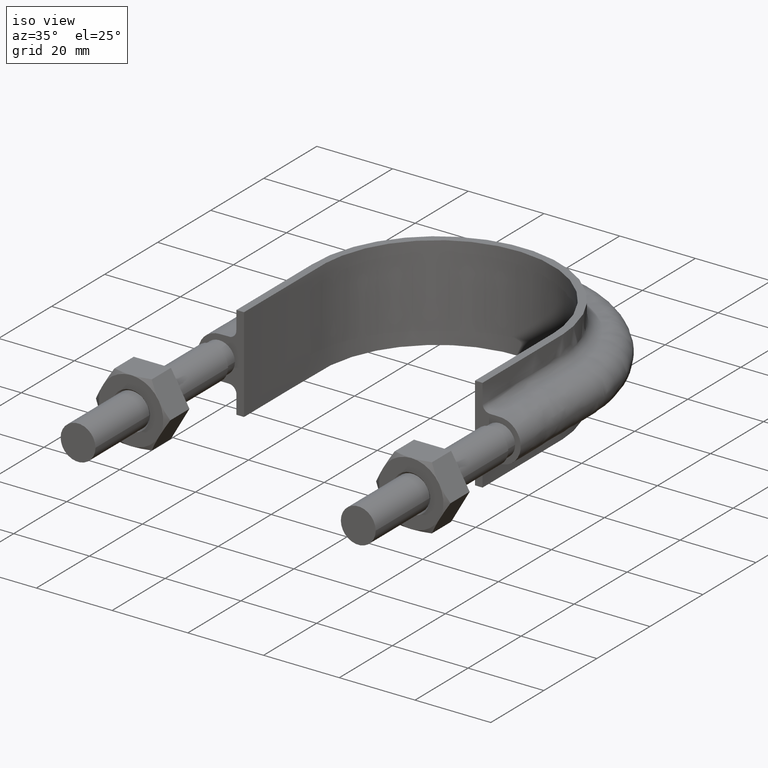
[diagram: clean part render]
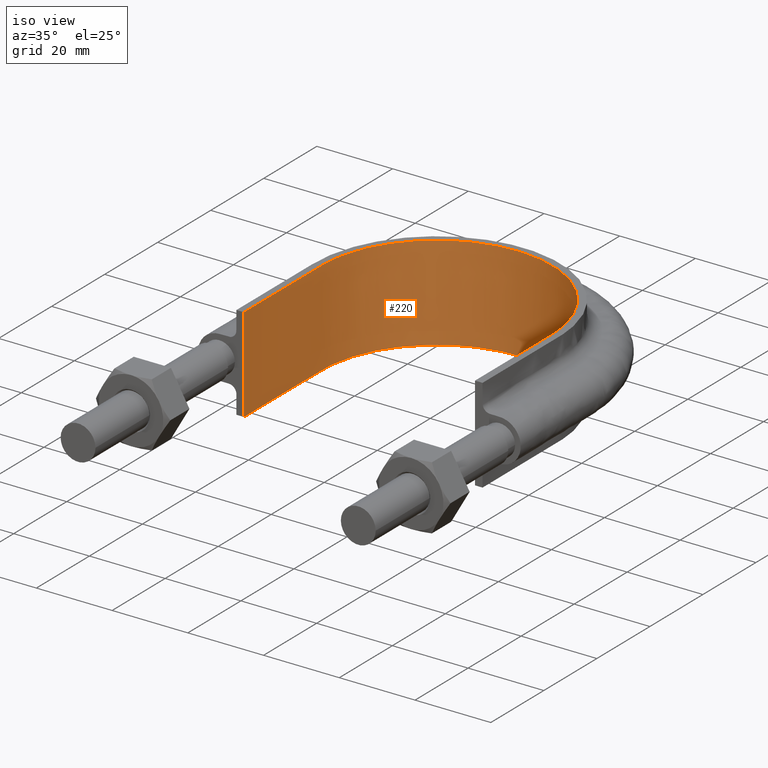
[diagram: same view with one face highlighted and labeled with its STEP entity id]
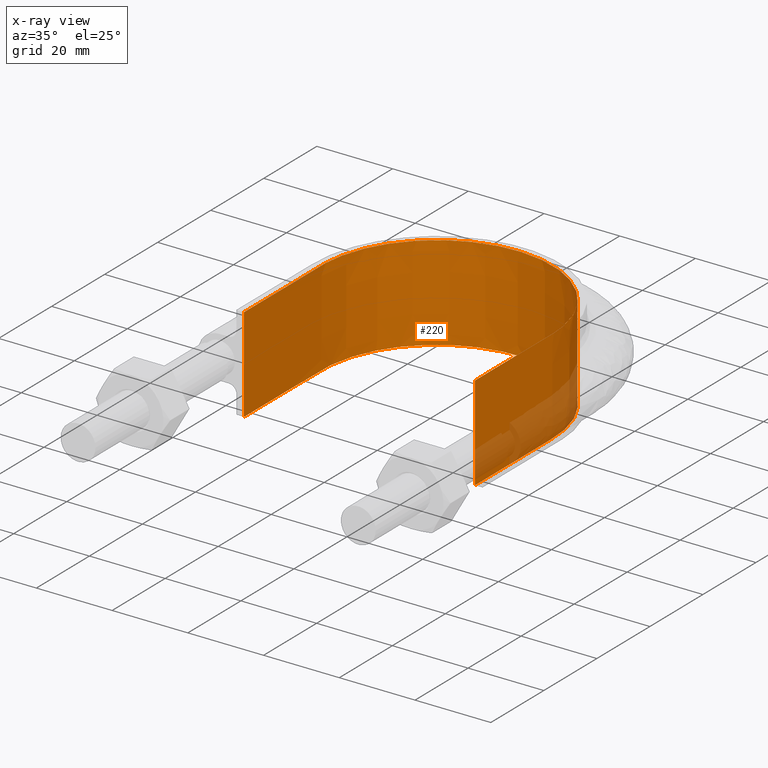
[diagram: x-ray of the same camera — body ghosted, the highlighted face saturated]
A machine part, iso view. The second image highlights one B-rep face of the part: STEP entity #220.
The next image is the same camera in x-ray: the body ghosted, the highlighted face saturated — about 9% of this face is hidden behind the body in this view.
In plain terms, the highlighted face is a SurfaceOfExtrusion surface.
Its self-contained STEP definition (entity closure, byte-faithful):
#220 = ADVANCED_FACE( '', ( #299 ), #300, .T. );
#299 = FACE_OUTER_BOUND( '', #471, .T. );
#300 = SURFACE_OF_LINEAR_EXTRUSION( '', #472, #473 );
#471 = EDGE_LOOP( '', ( #1473, #1474, #1475, #1476 ) );
#472 = B_SPLINE_CURVE_WITH_KNOTS( '', 3, ( #1477, #1478, #1479, #1480, #1481, #1482, #1483, #1484, #1485, #1486, #1487, #1488, #1489, #1490, #1491, #1492, #1493 ), .UNSPECIFIED., .F., .F., ( 4, 3, 1, 1, 1, 1, 1, 1, 1, 3, 4 ), ( -7.88217522658610, -7.00000000000000, -6.50000000000000, -6.00000000000000, -5.00000000000000, -4.00000000000000, -3.00000000000000, -2.00000000000000, -1.50000000000000, -1.00000000000000, -0.117824773413899 ), .UNSPECIFIED. );
#473 = VECTOR( '', #1494, 1000.00000000000 );
#1473 = ORIENTED_EDGE( '', *, *, #2008, .T. );
#1474 = ORIENTED_EDGE( '', *, *, #2004, .F. );
#1475 = ORIENTED_EDGE( '', *, *, #2009, .F. );
#1476 = ORIENTED_EDGE( '', *, *, #2010, .T. );
#1477 = CARTESIAN_POINT( '', ( 30.5000000000000, 53.3000000000001, 12.5000100000910 ) );
#1478 = CARTESIAN_POINT( '', ( 30.5000000000000, 63.0333333333334, 12.5000100000910 ) );
#1479 = CARTESIAN_POINT( '', ( 30.5000000000000, 72.7666666666667, 12.5000100000910 ) );
#1480 = CARTESIAN_POINT( '', ( 30.5000000000000, 82.5000000000000, 12.5000100000910 ) );
#1481 = CARTESIAN_POINT( '', ( 30.5000000000000, 85.1469095748589, 12.5000100000910 ) );
#1482 = CARTESIAN_POINT( '', ( 29.7847488998591, 90.4869374410593, 12.5000100000910 ) );
#1483 = CARTESIAN_POINT( '', ( 25.7022707691493, 100.407294151929, 12.5000100000910 ) );
#1484 = CARTESIAN_POINT( '', ( 15.9624408097424, 110.149665427345, 12.5000100000910 ) );
#1485 = CARTESIAN_POINT( '', ( 2.44209195454634E-014, 114.425167286328, 12.5000100000910 ) );
#1486 = CARTESIAN_POINT( '', ( -15.9624408097423, 110.149665427345, 12.5000100000910 ) );
#1487 = CARTESIAN_POINT( '', ( -25.7022707691492, 100.407294151929, 12.5000100000910 ) );
#1488 = CARTESIAN_POINT( '', ( -29.7847488998590, 90.4869374410593, 12.5000100000910 ) );
#1489 = CARTESIAN_POINT( '', ( -30.5000000000000, 85.1469095748589, 12.5000100000910 ) );
#1490 = CARTESIAN_POINT( '', ( -30.5000000000000, 82.5000000000000, 12.5000100000910 ) );
#1491 = CARTESIAN_POINT( '', ( -30.5000000000000, 72.7666666666667, 12.5000100000910 ) );
#1492 = CARTESIAN_POINT( '', ( -30.5000000000000, 63.0333333333334, 12.5000100000910 ) );
#1493 = CARTESIAN_POINT( '', ( -30.5000000000000, 53.3000000000001, 12.5000100000910 ) );
#1494 = DIRECTION( '', ( 0.000000000000000, 0.000000000000000, -1.00000000000000 ) );
#2004 = EDGE_CURVE( '', #2155, #2158, #2159, .T. );
#2008 = EDGE_CURVE( '', #2165, #2158, #2166, .F. );
#2009 = EDGE_CURVE( '', #2167, #2155, #2168, .T. );
#2010 = EDGE_CURVE( '', #2167, #2165, #2169, .T. );
#2155 = VERTEX_POINT( '', #2405 );
#2158 = VERTEX_POINT( '', #2409 );
#2159 = LINE( '', #2410, #2411 );
#2165 = VERTEX_POINT( '', #2457 );
#2166 = B_SPLINE_CURVE_WITH_KNOTS( '', 3, ( #2458, #2459, #2460, #2461, #2462, #2463, #2464, #2465, #2466, #2467, #2468, #2469, #2470, #2471, #2472, #2473, #2474 ), .UNSPECIFIED., .F., .F., ( 4, 3, 1, 1, 1, 1, 1, 1, 1, 3, 4 ), ( -7.88217522658610, -7.00000000000000, -6.50000000000000, -6.00000000000000, -5.00000000000000, -4.00000000000000, -3.00000000000000, -2.00000000000000, -1.50000000000000, -1.00000000000000, -0.117824773413899 ), .UNSPECIFIED. );
#2167 = VERTEX_POINT( '', #2475 );
#2168 = B_SPLINE_CURVE_WITH_KNOTS( '', 3, ( #2476, #2477, #2478, #2479, #2480, #2481, #2482, #2483, #2484, #2485, #2486, #2487, #2488, #2489, #2490, #2491, #2492, #2493, #2494, #2495, #2496, #2497, #2498, #2499, #2500, #2501, #2502, #2503, #2504, #2505, #2506, #2507, #2508, #2509, #2510, #2511, #2512, #2513, #2514, #2515, #2516, #2517, #2518, #2519, #2520, #2521, #2522, #2523, #2524, #2525, #2526, #2527, #2528, #2529, #2530, #2531, #2532, #2533, #2534, #2535, #2536, #2537, #2538, #2539, #2540, #2541, #2542, #2543, #2544, #2545, #2546, #2547, #2548, #2549 ), .UNSPECIFIED., .F., .F., ( 4, 1, 2, 2, 2, 2, 2, 2, 2, 2, 2, 2, 2, 2, 2, 2, 2, 2, 2, 2, 2, 2, 2, 2, 2, 2, 2, 2, 2, 2, 2, 2, 2, 2, 2, 2, 1, 4 ), ( 0.000000000000000, 0.0192554222640501, 0.0288831333960752, 0.0300865972875783, 0.0312900611790814, 0.0336969889620877, 0.0385108445281003, 0.0433247000941129, 0.0445281639856160, 0.0457316278771192, 0.0481385556601255, 0.0529524112261380, 0.0553593390091443, 0.0577662667921505, 0.0625801223581630, 0.0649870501411693, 0.0673939779241756, 0.0722078334901881, 0.0746147612731943, 0.0770216890562006, 0.0818355446222131, 0.0842424724052194, 0.0866494001882257, 0.0914632557542382, 0.0938701835372444, 0.0962771113202507, 0.101090966886263, 0.103497894669269, 0.105904822452276, 0.110718678018288, 0.115532533584301, 0.117939461367307, 0.120346389150313, 0.122753316933320, 0.123956780824823, 0.125160244716326, 0.134787955848351, 0.154043378112401 ), .UNSPECIFIED. );
#2169 = LINE( '', #2550, #2551 );
#2405 = CARTESIAN_POINT( '', ( 30.5000000000000, 53.3000000000001, 12.5000000000000 ) );
#2409 = CARTESIAN_POINT( '', ( 30.5000000000000, 53.3000000000001, -12.5000000000000 ) );
#2410 = CARTESIAN_POINT( '', ( 30.5000000000000, 53.3000000000001, 12.5000100000910 ) );
#2411 = VECTOR( '', #3059, 1000.00000000000 );
#2457 = CARTESIAN_POINT( '', ( -30.5000000000000, 53.3000000000001, -12.5000000000000 ) );
#2458 = CARTESIAN_POINT( '', ( 30.5000000000000, 53.3000000000001, -12.5000000000000 ) );
#2459 = CARTESIAN_POINT( '', ( 30.5000000000000, 63.0333333333334, -12.5000000000000 ) );
#2460 = CARTESIAN_POINT( '', ( 30.5000000000000, 72.7666666666667, -12.5000000000000 ) );
#2461 = CARTESIAN_POINT( '', ( 30.5000000000000, 82.5000000000000, -12.5000000000000 ) );
#2462 = CARTESIAN_POINT( '', ( 30.5000000000000, 85.1469095748589, -12.5000000000000 ) );
#2463 = CARTESIAN_POINT( '', ( 29.7847488998591, 90.4869374410593, -12.5000000000000 ) );
#2464 = CARTESIAN_POINT( '', ( 25.7022707691493, 100.407294151929, -12.5000000000000 ) );
#2465 = CARTESIAN_POINT( '', ( 15.9624408097424, 110.149665427345, -12.5000000000000 ) );
#2466 = CARTESIAN_POINT( '', ( 2.44209195454634E-014, 114.425167286328, -12.5000000000000 ) );
#2467 = CARTESIAN_POINT( '', ( -15.9624408097423, 110.149665427345, -12.5000000000000 ) );
#2468 = CARTESIAN_POINT( '', ( -25.7022707691492, 100.407294151929, -12.5000000000000 ) );
#2469 = CARTESIAN_POINT( '', ( -29.7847488998590, 90.4869374410593, -12.5000000000000 ) );
#2470 = CARTESIAN_POINT( '', ( -30.5000000000000, 85.1469095748589, -12.5000000000000 ) );
#2471 = CARTESIAN_POINT( '', ( -30.5000000000000, 82.5000000000000, -12.5000000000000 ) );
#2472 = CARTESIAN_POINT( '', ( -30.5000000000000, 72.7666666666667, -12.5000000000000 ) );
#2473 = CARTESIAN_POINT( '', ( -30.5000000000000, 63.0333333333334, -12.5000000000000 ) );
#2474 = CARTESIAN_POINT( '', ( -30.5000000000000, 53.3000000000001, -12.5000000000000 ) );
#2475 = CARTESIAN_POINT( '', ( -30.5000000000000, 53.3000000000001, 12.5000000000000 ) );
#2476 = CARTESIAN_POINT( '', ( -30.5000000000000, 53.3000000000001, 12.5000000000000 ) );
#2477 = CARTESIAN_POINT( '', ( -30.5000000000000, 59.7187970838913, 12.5000000000000 ) );
#2478 = CARTESIAN_POINT( '', ( -30.5000000000000, 69.3469927097281, 12.5000000000000 ) );
#2479 = CARTESIAN_POINT( '', ( -30.5000000000000, 78.9751883355649, 12.5000000000000 ) );
#2480 = CARTESIAN_POINT( '', ( -30.5000000000000, 82.5857616952537, 12.5000000000000 ) );
#2481 = CARTESIAN_POINT( '', ( -30.4986844541323, 82.9869233149688, 12.5000000000000 ) );
#2482 = CARTESIAN_POINT( '', ( -30.4745981741132, 83.7890313082535, 12.5000000000000 ) );
#2483 = CARTESIAN_POINT( '', ( -30.4544492509140, 84.1900039847712, 12.5000000000000 ) );
#2484 = CARTESIAN_POINT( '', ( -30.3699321862256, 85.3926805324889, 12.5000000000000 ) );
#2485 = CARTESIAN_POINT( '', ( -30.2815513452004, 86.1941969152073, 12.5000000000000 ) );
#2486 = CARTESIAN_POINT( '', ( -29.9199873207873, 88.5974575716381, 12.5000000000000 ) );
#2487 = CARTESIAN_POINT( '', ( -29.5571198360746, 90.1597878617220, 12.5000000000000 ) );
#2488 = CARTESIAN_POINT( '', ( -28.5972722047830, 93.2078805901149, 12.5000000000000 ) );
#2489 = CARTESIAN_POINT( '', ( -28.0002144656636, 94.6936176513508, 12.5000000000000 ) );
#2490 = CARTESIAN_POINT( '', ( -27.0992764629768, 96.5002210087551, 12.5000000000000 ) );
#2491 = CARTESIAN_POINT( '', ( -26.9108830168221, 96.8597048381309, 12.5000000000000 ) );
#2492 = CARTESIAN_POINT( '', ( -26.5213882779157, 97.5675877861412, 12.5000000000000 ) );
#2493 = CARTESIAN_POINT( '', ( -26.3200606712639, 97.9164743968342, 12.5000000000000 ) );
#2494 = CARTESIAN_POINT( '', ( -25.6966622493176, 98.9482193844742, 12.5000000000000 ) );
#2495 = CARTESIAN_POINT( '', ( -25.2552822010554, 99.6162446284549, 12.5000000000000 ) );
#2496 = CARTESIAN_POINT( '', ( -23.8563980365694, 101.562902855285, 12.5000000000000 ) );
#2497 = CARTESIAN_POINT( '', ( -22.8247599514251, 102.784586967087, 12.5000000000000 ) );
#2498 = CARTESIAN_POINT( '', ( -21.1277356912024, 104.502217366142, 12.5000000000000 ) );
#2499 = CARTESIAN_POINT( '', ( -20.5344294178502, 105.057480363821, 12.5000000000000 ) );
#2500 = CARTESIAN_POINT( '', ( -19.3154400053686, 106.111482848479, 12.5000000000000 ) );
#2501 = CARTESIAN_POINT( '', ( -18.6885192790514, 106.611839840476, 12.5000000000000 ) );
#2502 = CARTESIAN_POINT( '', ( -16.7561230155805, 108.033962699371, 12.5000000000000 ) );
#2503 = CARTESIAN_POINT( '', ( -15.3990725127795, 108.876870841469, 12.5000000000000 ) );
#2504 = CARTESIAN_POINT( '', ( -13.2570671195093, 109.978502957120, 12.5000000000000 ) );
#2505 = CARTESIAN_POINT( '', ( -12.5228230069799, 110.319814017707, 12.5000000000000 ) );
#2506 = CARTESIAN_POINT( '', ( -11.0306240768061, 110.942412499716, 12.5000000000000 ) );
#2507 = CARTESIAN_POINT( '', ( -10.2767436568867, 111.222274993299, 12.5000000000000 ) );
#2508 = CARTESIAN_POINT( '', ( -7.99256638845173, 111.970812104532, 12.5000000000000 ) );
#2509 = CARTESIAN_POINT( '', ( -6.43991564048137, 112.349172113476, 12.5000000000000 ) );
#2510 = CARTESIAN_POINT( '', ( -4.06589188416633, 112.734709900453, 12.5000000000000 ) );
#2511 = CARTESIAN_POINT( '', ( -3.26699737472991, 112.832705696047, 12.5000000000000 ) );
#2512 = CARTESIAN_POINT( '', ( -1.65347310558422, 112.965123458688, 12.5000000000000 ) );
#2513 = CARTESIAN_POINT( '', ( -0.846703494355792, 112.998768451046, 12.5000000000000 ) );
#2514 = CARTESIAN_POINT( '', ( 1.55984817231912, 113.002363337310, 12.5000000000000 ) );
#2515 = CARTESIAN_POINT( '', ( 3.15187678310370, 112.876183128002, 12.5000000000000 ) );
#2516 = CARTESIAN_POINT( '', ( 5.52210746155240, 112.501305428157, 12.5000000000000 ) );
#2517 = CARTESIAN_POINT( '', ( 6.30919715953041, 112.345218975853, 12.5000000000000 ) );
#2518 = CARTESIAN_POINT( '', ( 7.87729381106987, 111.969662553274, 12.5000000000000 ) );
#2519 = CARTESIAN_POINT( '', ( 8.65917048563711, 111.749575242181, 12.5000000000000 ) );
#2520 = CARTESIAN_POINT( '', ( 10.9545464152787, 111.005259840030, 12.5000000000000 ) );
#2521 = CARTESIAN_POINT( '', ( 12.4320231471580, 110.394841390724, 12.5000000000000 ) );
#2522 = CARTESIAN_POINT( '', ( 14.5688395440172, 109.307386671407, 12.5000000000000 ) );
#2523 = CARTESIAN_POINT( '', ( 15.2677563263257, 108.915999398826, 12.5000000000000 ) );
#2524 = CARTESIAN_POINT( '', ( 16.6381409078520, 108.073822399900, 12.5000000000000 ) );
#2525 = CARTESIAN_POINT( '', ( 17.3125759005460, 107.620964775786, 12.5000000000000 ) );
#2526 = CARTESIAN_POINT( '', ( 19.2664798661707, 106.192854811404, 12.5000000000000 ) );
#2527 = CARTESIAN_POINT( '', ( 20.4798446876838, 105.148667712286, 12.5000000000000 ) );
#2528 = CARTESIAN_POINT( '', ( 22.1715309172385, 103.449889227025, 12.5000000000000 ) );
#2529 = CARTESIAN_POINT( '', ( 22.7138929749291, 102.861402400307, 12.5000000000000 ) );
#2530 = CARTESIAN_POINT( '', ( 23.7548102890672, 101.639210134757, 12.5000000000000 ) );
#2531 = CARTESIAN_POINT( '', ( 24.2544864579076, 101.003952520684, 12.5000000000000 ) );
#2532 = CARTESIAN_POINT( '', ( 25.6776288297832, 99.0375811703481, 12.5000000000000 ) );
#2533 = CARTESIAN_POINT( '', ( 26.5096219006963, 97.6683929281868, 12.5000000000000 ) );
#2534 = CARTESIAN_POINT( '', ( 27.9456565910457, 94.8162559376612, 12.5000000000000 ) );
#2535 = CARTESIAN_POINT( '', ( 28.5509590265555, 93.3339364069386, 12.5000000000000 ) );
#2536 = CARTESIAN_POINT( '', ( 29.2876344042200, 91.0249796848165, 12.5000000000000 ) );
#2537 = CARTESIAN_POINT( '', ( 29.5032356740682, 90.2439773078624, 12.5000000000000 ) );
#2538 = CARTESIAN_POINT( '', ( 29.8703294719088, 88.6797381224589, 12.5000000000000 ) );
#2539 = CARTESIAN_POINT( '', ( 30.0228181117525, 87.8935874420542, 12.5000000000000 ) );
#2540 = CARTESIAN_POINT( '', ( 30.2663038414340, 86.3133050211838, 12.5000000000000 ) );
#2541 = CARTESIAN_POINT( '', ( 30.3573018810971, 85.5191734039972, 12.5000000000000 ) );
#2542 = CARTESIAN_POINT( '', ( 30.4466313783280, 84.3218540452476, 12.5000000000000 ) );
#2543 = CARTESIAN_POINT( '', ( 30.4685308150341, 83.9217252192102, 12.5000000000000 ) );
#2544 = CARTESIAN_POINT( '', ( 30.4961990804466, 83.1193739566922, 12.5000000000000 ) );
#2545 = CARTESIAN_POINT( '', ( 30.5000000000000, 82.7168961029853, 12.5000000000000 ) );
#2546 = CARTESIAN_POINT( '', ( 30.5000000000000, 79.0901554875488, 12.5000000000000 ) );
#2547 = CARTESIAN_POINT( '', ( 30.5000000000000, 69.4188471797180, 12.5000000000000 ) );
#2548 = CARTESIAN_POINT( '', ( 30.5000000000000, 59.7475388718873, 12.5000000000000 ) );
#2549 = CARTESIAN_POINT( '', ( 30.5000000000000, 53.3000000000001, 12.5000000000000 ) );
#2550 = CARTESIAN_POINT( '', ( -30.5000000000000, 53.3000000000001, 12.5000100000910 ) );
#2551 = VECTOR( '', #3061, 1000.00000000000 );
#3059 = DIRECTION( '', ( 0.000000000000000, 0.000000000000000, -1.00000000000000 ) );
#3061 = DIRECTION( '', ( 0.000000000000000, 0.000000000000000, -1.00000000000000 ) );